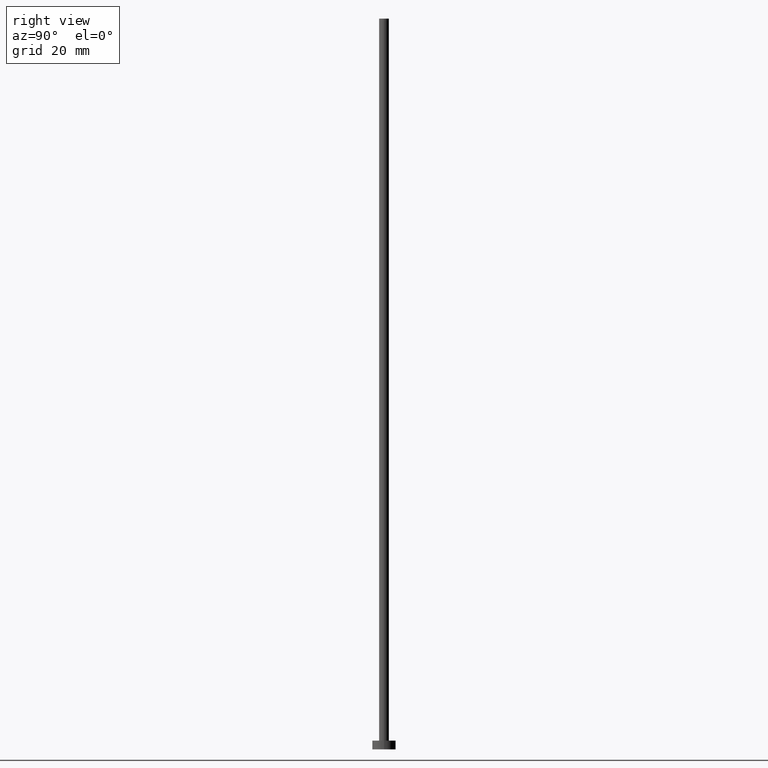
[diagram: clean part render]
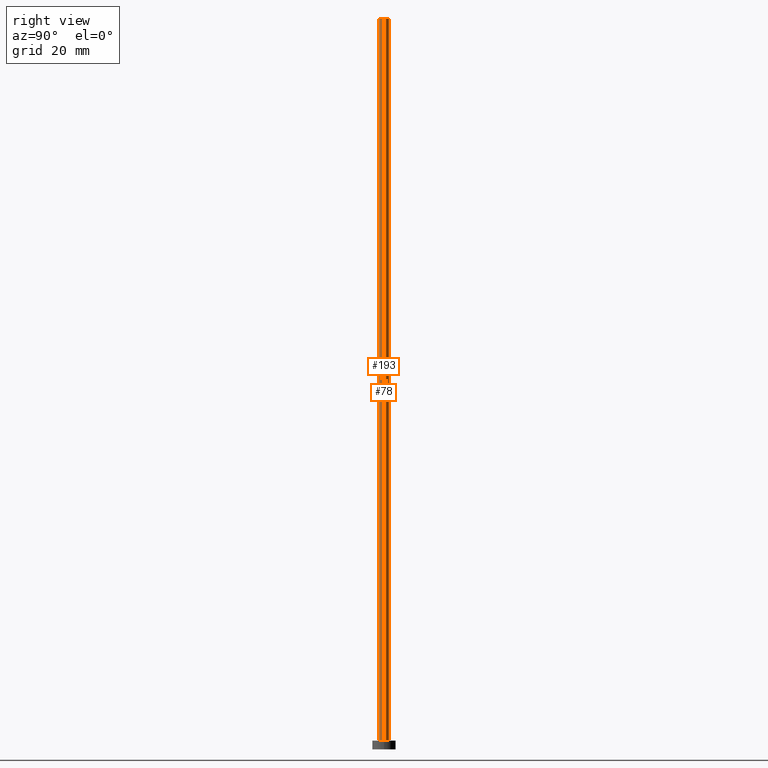
[diagram: same view with one multi-face feature highlighted, each face labeled with its STEP entity id]
A machine part, right view. The highlighted faces form ONE feature: a constant-radius fillet chain: 2 tangent blend faces with common blend radius 0.85 mm. The faces share edges in the B-rep.
Their STEP definitions:
[1] entity #193 (Cylinder):
#1 = ORIENTED_EDGE ( 'NONE', *, *, #132, .F. ) ;
#5 = AXIS2_PLACEMENT_3D ( 'NONE', #180, #146, #45 ) ;
#6 = CARTESIAN_POINT ( 'NONE',  ( 0.8499999999999999778, 1.040949779275250140E-16, 1.500000000000000000 ) ) ;
#12 = LINE ( 'NONE', #93, #127 ) ;
#25 = VERTEX_POINT ( 'NONE', #188 ) ;
#29 = DIRECTION ( 'NONE',  ( -0.000000000000000000, -0.000000000000000000, -1.000000000000000000 ) ) ;
#41 = DIRECTION ( 'NONE',  ( -1.000000000000000000, 0.000000000000000000, 0.000000000000000000 ) ) ;
#43 = ORIENTED_EDGE ( 'NONE', *, *, #223, .F. ) ;
#44 = CARTESIAN_POINT ( 'NONE',  ( 0.8499999999999999778, 1.040949779275250140E-16, 125.0000000000000000 ) ) ;
#45 = DIRECTION ( 'NONE',  ( 1.000000000000000000, 0.000000000000000000, 0.000000000000000000 ) ) ;
#53 = ORIENTED_EDGE ( 'NONE', *, *, #88, .T. ) ;
#68 = CYLINDRICAL_SURFACE ( 'NONE', #228, 0.8499999999999999778 ) ;
#73 = EDGE_CURVE ( 'NONE', #25, #141, #91, .T. ) ;
#75 = DIRECTION ( 'NONE',  ( 1.000000000000000000, 0.000000000000000000, 0.000000000000000000 ) ) ;
#77 = DIRECTION ( 'NONE',  ( 0.000000000000000000, 0.000000000000000000, 1.000000000000000000 ) ) ;
#82 = CARTESIAN_POINT ( 'NONE',  ( 0.000000000000000000, 0.000000000000000000, 125.0000000000000000 ) ) ;
#88 = EDGE_CURVE ( 'NONE', #243, #25, #252, .T. ) ;
#91 = CIRCLE ( 'NONE', #230, 0.8499999999999999778 ) ;
#93 = CARTESIAN_POINT ( 'NONE',  ( 0.8499999999999999778, 1.040949779275250140E-16, 125.0000000000000000 ) ) ;
#121 = FACE_OUTER_BOUND ( 'NONE', #181, .T. ) ;
#127 = VECTOR ( 'NONE', #29, 1000.000000000000000 ) ;
#128 = ORIENTED_EDGE ( 'NONE', *, *, #73, .T. ) ;
#132 = EDGE_CURVE ( 'NONE', #243, #166, #169, .T. ) ;
#135 = CARTESIAN_POINT ( 'NONE',  ( -0.8499999999999999778, 0.000000000000000000, 125.0000000000000000 ) ) ;
#141 = VERTEX_POINT ( 'NONE', #6 ) ;
#146 = DIRECTION ( 'NONE',  ( 0.000000000000000000, 0.000000000000000000, 1.000000000000000000 ) ) ;
#157 = CARTESIAN_POINT ( 'NONE',  ( 0.000000000000000000, 0.000000000000000000, 1.500000000000000000 ) ) ;
#166 = VERTEX_POINT ( 'NONE', #44 ) ;
#169 = CIRCLE ( 'NONE', #5, 0.8499999999999999778 ) ;
#180 = CARTESIAN_POINT ( 'NONE',  ( 0.000000000000000000, 0.000000000000000000, 125.0000000000000000 ) ) ;
#181 = EDGE_LOOP ( 'NONE', ( #43, #1, #53, #128 ) ) ;
#187 = CARTESIAN_POINT ( 'NONE',  ( -0.8499999999999999778, 0.000000000000000000, 125.0000000000000000 ) ) ;
#188 = CARTESIAN_POINT ( 'NONE',  ( -0.8499999999999999778, 0.000000000000000000, 1.500000000000000000 ) ) ;
#193 = ADVANCED_FACE ( 'NONE', ( #121 ), #68, .T. ) ;
#196 = DIRECTION ( 'NONE',  ( -0.000000000000000000, -0.000000000000000000, -1.000000000000000000 ) ) ;
#218 = DIRECTION ( 'NONE',  ( -0.000000000000000000, -0.000000000000000000, -1.000000000000000000 ) ) ;
#223 = EDGE_CURVE ( 'NONE', #166, #141, #12, .T. ) ;
#228 = AXIS2_PLACEMENT_3D ( 'NONE', #82, #218, #41 ) ;
#230 = AXIS2_PLACEMENT_3D ( 'NONE', #157, #77, #75 ) ;
#232 = VECTOR ( 'NONE', #196, 1000.000000000000000 ) ;
#243 = VERTEX_POINT ( 'NONE', #187 ) ;
#252 = LINE ( 'NONE', #135, #232 ) ;
[2] entity #78 (Cylinder):
#3 = DIRECTION ( 'NONE',  ( 0.000000000000000000, 0.000000000000000000, 1.000000000000000000 ) ) ;
#6 = CARTESIAN_POINT ( 'NONE',  ( 0.8499999999999999778, 1.040949779275250140E-16, 1.500000000000000000 ) ) ;
#10 = AXIS2_PLACEMENT_3D ( 'NONE', #24, #3, #105 ) ;
#12 = LINE ( 'NONE', #93, #127 ) ;
#15 = AXIS2_PLACEMENT_3D ( 'NONE', #66, #202, #185 ) ;
#24 = CARTESIAN_POINT ( 'NONE',  ( 0.000000000000000000, 0.000000000000000000, 125.0000000000000000 ) ) ;
#25 = VERTEX_POINT ( 'NONE', #188 ) ;
#29 = DIRECTION ( 'NONE',  ( -0.000000000000000000, -0.000000000000000000, -1.000000000000000000 ) ) ;
#44 = CARTESIAN_POINT ( 'NONE',  ( 0.8499999999999999778, 1.040949779275250140E-16, 125.0000000000000000 ) ) ;
#62 = ORIENTED_EDGE ( 'NONE', *, *, #88, .F. ) ;
#64 = AXIS2_PLACEMENT_3D ( 'NONE', #134, #159, #138 ) ;
#65 = ORIENTED_EDGE ( 'NONE', *, *, #223, .T. ) ;
#66 = CARTESIAN_POINT ( 'NONE',  ( 0.000000000000000000, 0.000000000000000000, 1.500000000000000000 ) ) ;
#78 = ADVANCED_FACE ( 'NONE', ( #79 ), #231, .T. ) ;
#79 = FACE_OUTER_BOUND ( 'NONE', #145, .T. ) ;
#83 = CIRCLE ( 'NONE', #10, 0.8499999999999999778 ) ;
#84 = ORIENTED_EDGE ( 'NONE', *, *, #179, .F. ) ;
#86 = ORIENTED_EDGE ( 'NONE', *, *, #137, .T. ) ;
#88 = EDGE_CURVE ( 'NONE', #243, #25, #252, .T. ) ;
#93 = CARTESIAN_POINT ( 'NONE',  ( 0.8499999999999999778, 1.040949779275250140E-16, 125.0000000000000000 ) ) ;
#105 = DIRECTION ( 'NONE',  ( 1.000000000000000000, 0.000000000000000000, 0.000000000000000000 ) ) ;
#113 = CIRCLE ( 'NONE', #15, 0.8499999999999999778 ) ;
#127 = VECTOR ( 'NONE', #29, 1000.000000000000000 ) ;
#134 = CARTESIAN_POINT ( 'NONE',  ( 0.000000000000000000, 0.000000000000000000, 125.0000000000000000 ) ) ;
#135 = CARTESIAN_POINT ( 'NONE',  ( -0.8499999999999999778, 0.000000000000000000, 125.0000000000000000 ) ) ;
#137 = EDGE_CURVE ( 'NONE', #141, #25, #113, .T. ) ;
#138 = DIRECTION ( 'NONE',  ( -1.000000000000000000, 0.000000000000000000, 0.000000000000000000 ) ) ;
#141 = VERTEX_POINT ( 'NONE', #6 ) ;
#145 = EDGE_LOOP ( 'NONE', ( #84, #65, #86, #62 ) ) ;
#159 = DIRECTION ( 'NONE',  ( -0.000000000000000000, -0.000000000000000000, -1.000000000000000000 ) ) ;
#166 = VERTEX_POINT ( 'NONE', #44 ) ;
#179 = EDGE_CURVE ( 'NONE', #166, #243, #83, .T. ) ;
#185 = DIRECTION ( 'NONE',  ( 1.000000000000000000, 0.000000000000000000, 0.000000000000000000 ) ) ;
#187 = CARTESIAN_POINT ( 'NONE',  ( -0.8499999999999999778, 0.000000000000000000, 125.0000000000000000 ) ) ;
#188 = CARTESIAN_POINT ( 'NONE',  ( -0.8499999999999999778, 0.000000000000000000, 1.500000000000000000 ) ) ;
#196 = DIRECTION ( 'NONE',  ( -0.000000000000000000, -0.000000000000000000, -1.000000000000000000 ) ) ;
#202 = DIRECTION ( 'NONE',  ( 0.000000000000000000, 0.000000000000000000, 1.000000000000000000 ) ) ;
#223 = EDGE_CURVE ( 'NONE', #166, #141, #12, .T. ) ;
#231 = CYLINDRICAL_SURFACE ( 'NONE', #64, 0.8499999999999999778 ) ;
#232 = VECTOR ( 'NONE', #196, 1000.000000000000000 ) ;
#243 = VERTEX_POINT ( 'NONE', #187 ) ;
#252 = LINE ( 'NONE', #135, #232 ) ;